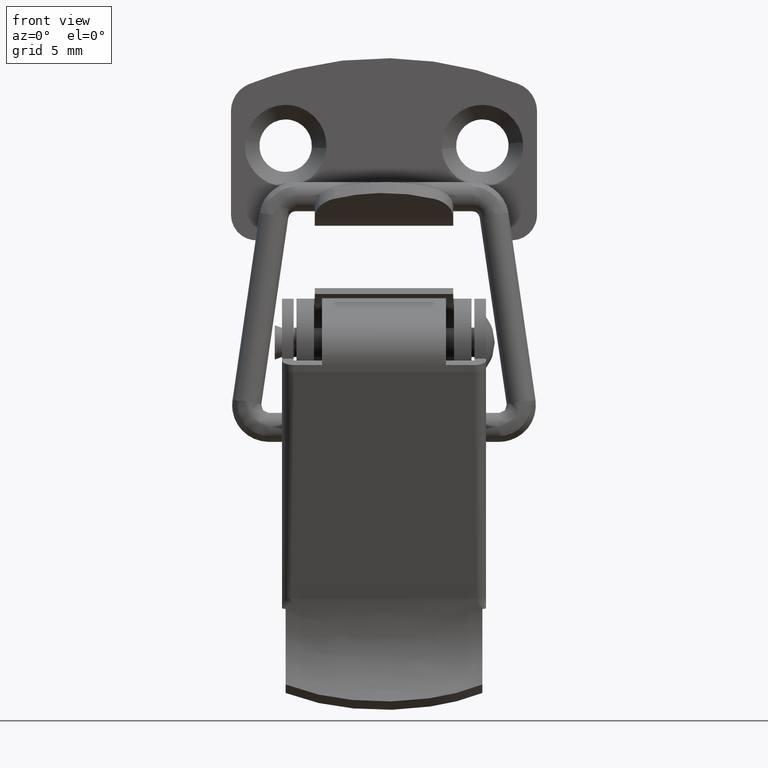
[diagram: clean part render]
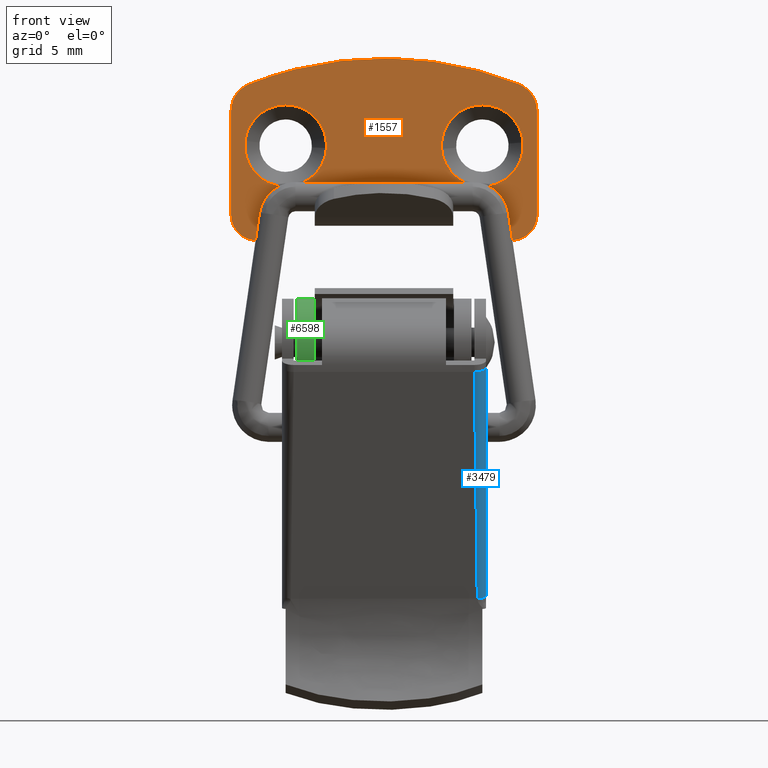
[diagram: same view with three faces highlighted in distinct colors, each labeled with its STEP entity id]
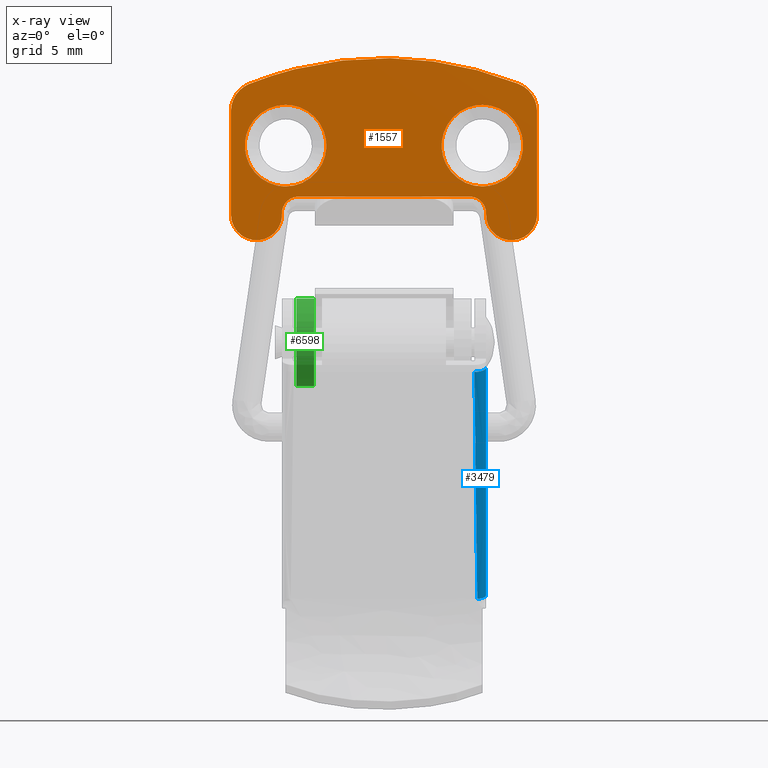
[diagram: x-ray of the same camera — body ghosted, the three highlighted faces saturated]
A machine part, front view with three faces highlighted in distinct colors.
The next image is the same camera in x-ray (body ghosted, the three faces saturated) — at least one of them is partly hidden behind the body in this view.
Their STEP definitions:

[orange] entity #1557 — the highlighted face is a freeform B-spline surface patch.
#62=CARTESIAN_POINT('',(1.500000000000000,-6.750000000000000,6.300000000000085));
#63=VERTEX_POINT('',#62);
#64=CARTESIAN_POINT('',(1.499999999968838,-9.541368534465113,3.719685468278247));
#65=VERTEX_POINT('',#64);
#66=CARTESIAN_POINT('',(1.500000000000000,-6.750000000000000,6.300000000000085));
#67=CARTESIAN_POINT('',(1.500000000000000,-9.338293376200706,6.300000000000085));
#68=CARTESIAN_POINT('',(1.499999999968838,-9.541368534465113,3.719685468278247));
#76=(BOUNDED_CURVE()B_SPLINE_CURVE(2,(#66,#67,#68),.UNSPECIFIED.,.F.,.U.)B_SPLINE_CURVE_WITH_KNOTS((3,3),(0.0,0.236331300603565),.UNSPECIFIED.)CURVE()GEOMETRIC_REPRESENTATION_ITEM()RATIONAL_B_SPLINE_CURVE((1.0,0.723120658639409,0.969723356110874))REPRESENTATION_ITEM(''));
#77=EDGE_CURVE('',#63,#65,#76,.T.);
#79=CARTESIAN_POINT('',(1.499999999968838,-3.958631465534888,3.280314531721922));
#80=VERTEX_POINT('',#79);
#81=CARTESIAN_POINT('',(1.499999999968838,-3.958631465534889,3.280314531721922));
#82=CARTESIAN_POINT('',(1.500000000000000,-3.950000000000000,3.389987700139757));
#83=CARTESIAN_POINT('',(1.500000000000000,-3.950000000000000,3.500000000000085));
#84=CARTESIAN_POINT('',(1.500000000000000,-3.950000000000001,6.300000000000085));
#85=CARTESIAN_POINT('',(1.500000000000000,-6.750000000000000,6.300000000000085));
#93=(BOUNDED_CURVE()B_SPLINE_CURVE(2,(#81,#82,#83,#84,#85),.UNSPECIFIED.,.F.,.U.)B_SPLINE_CURVE_WITH_KNOTS((3,2,3),(0.736331300603565,0.750000000000000,1.0),.UNSPECIFIED.)CURVE()GEOMETRIC_REPRESENTATION_ITEM()RATIONAL_B_SPLINE_CURVE((0.969723356110874,0.983986122547139,1.0,0.707106781186547,1.0))REPRESENTATION_ITEM(''));
#94=EDGE_CURVE('',#80,#63,#93,.T.);
#161=CARTESIAN_POINT('',(1.500000000000000,-6.750000000000000,0.700000000000085));
#162=VERTEX_POINT('',#161);
#163=CARTESIAN_POINT('',(1.499999999968838,-9.541368534465113,3.719685468278247));
#164=CARTESIAN_POINT('',(1.500000000000000,-9.549999999999999,3.610012299860414));
#165=CARTESIAN_POINT('',(1.500000000000000,-9.549999999999999,3.500000000000085));
#166=CARTESIAN_POINT('',(1.500000000000000,-9.549999999999999,0.700000000000085));
#167=CARTESIAN_POINT('',(1.500000000000000,-6.750000000000000,0.700000000000085));
#175=(BOUNDED_CURVE()B_SPLINE_CURVE(2,(#163,#164,#165,#166,#167),.UNSPECIFIED.,.F.,.U.)B_SPLINE_CURVE_WITH_KNOTS((3,2,3),(0.236331300603565,0.250000000000000,0.500000000000000),.UNSPECIFIED.)CURVE()GEOMETRIC_REPRESENTATION_ITEM()RATIONAL_B_SPLINE_CURVE((0.969723356110874,0.983986122547139,1.0,0.707106781186547,1.0))REPRESENTATION_ITEM(''));
#176=EDGE_CURVE('',#65,#162,#175,.T.);
#210=CARTESIAN_POINT('',(1.500000000000000,-6.750000000000000,0.700000000000085));
#211=CARTESIAN_POINT('',(1.500000000000000,-4.161706623799294,0.700000000000085));
#212=CARTESIAN_POINT('',(1.499999999968838,-3.958631465534888,3.280314531721922));
#220=(BOUNDED_CURVE()B_SPLINE_CURVE(2,(#210,#211,#212),.UNSPECIFIED.,.F.,.U.)B_SPLINE_CURVE_WITH_KNOTS((3,3),(0.500000000000000,0.736331300603565),.UNSPECIFIED.)CURVE()GEOMETRIC_REPRESENTATION_ITEM()RATIONAL_B_SPLINE_CURVE((1.0,0.723120658639409,0.969723356110873))REPRESENTATION_ITEM(''));
#221=EDGE_CURVE('',#162,#80,#220,.T.);
#248=CARTESIAN_POINT('',(1.499999999999677,9.530426673818283,3.830495857041588));
#249=VERTEX_POINT('',#248);
#250=CARTESIAN_POINT('',(1.500000000000000,6.750000000000000,0.700000000000085));
#251=VERTEX_POINT('',#250);
#252=CARTESIAN_POINT('',(1.499999999999677,9.530426673818283,3.830495857041588));
#253=CARTESIAN_POINT('',(1.500000000000000,9.549999999999999,3.665827535028001));
#254=CARTESIAN_POINT('',(1.500000000000000,9.549999999999999,3.500000000000085));
#255=CARTESIAN_POINT('',(1.500000000000000,9.549999999999999,0.700000000000085));
#256=CARTESIAN_POINT('',(1.500000000000000,6.750000000000000,0.700000000000085));
#264=(BOUNDED_CURVE()B_SPLINE_CURVE(2,(#252,#253,#254,#255,#256),.UNSPECIFIED.,.F.,.U.)B_SPLINE_CURVE_WITH_KNOTS((3,2,3),(0.229562473515335,0.250000000000000,0.500000000000000),.UNSPECIFIED.)CURVE()GEOMETRIC_REPRESENTATION_ITEM()RATIONAL_B_SPLINE_CURVE((0.956026754187280,0.976055948333285,1.0,0.707106781186547,1.0))REPRESENTATION_ITEM(''));
#265=EDGE_CURVE('',#249,#251,#264,.T.);
#267=CARTESIAN_POINT('',(1.499999999986203,3.955222564411398,3.329064089197074));
#268=VERTEX_POINT('',#267);
#269=CARTESIAN_POINT('',(1.500000000000000,6.750000000000000,0.700000000000085));
#270=CARTESIAN_POINT('',(1.500000000000000,4.116023012861545,0.700000000000085));
#271=CARTESIAN_POINT('',(1.499999999986203,3.955222564411398,3.329064089197073));
#279=(BOUNDED_CURVE()B_SPLINE_CURVE(2,(#269,#270,#271),.UNSPECIFIED.,.F.,.U.)B_SPLINE_CURVE_WITH_KNOTS((3,3),(0.500000000000000,0.739332962229055),.UNSPECIFIED.)CURVE()GEOMETRIC_REPRESENTATION_ITEM()RATIONAL_B_SPLINE_CURVE((1.0,0.719603993298294,0.976072041645526))REPRESENTATION_ITEM(''));
#280=EDGE_CURVE('',#251,#268,#279,.T.);
#347=CARTESIAN_POINT('',(1.500000000000000,6.750000000000000,6.300000000000085));
#348=VERTEX_POINT('',#347);
#349=CARTESIAN_POINT('',(1.500000000000000,6.750000000000000,6.300000000000085));
#350=CARTESIAN_POINT('',(1.500000000000000,9.236888672659250,6.300000000000086));
#351=CARTESIAN_POINT('',(1.499999999999677,9.530426673818283,3.830495857041588));
#359=(BOUNDED_CURVE()B_SPLINE_CURVE(2,(#349,#350,#351),.UNSPECIFIED.,.F.,.U.)B_SPLINE_CURVE_WITH_KNOTS((3,3),(0.0,0.229562473515335),.UNSPECIFIED.)CURVE()GEOMETRIC_REPRESENTATION_ITEM()RATIONAL_B_SPLINE_CURVE((1.0,0.731050832853262,0.956026754187280))REPRESENTATION_ITEM(''));
#360=EDGE_CURVE('',#348,#249,#359,.T.);
#394=CARTESIAN_POINT('',(1.499999999986203,3.955222564411398,3.329064089197074));
#395=CARTESIAN_POINT('',(1.500000000000000,3.950000000000000,3.414452262659173));
#396=CARTESIAN_POINT('',(1.500000000000000,3.950000000000000,3.500000000000085));
#397=CARTESIAN_POINT('',(1.500000000000000,3.950000000000001,6.300000000000085));
#398=CARTESIAN_POINT('',(1.500000000000000,6.750000000000000,6.300000000000085));
#406=(BOUNDED_CURVE()B_SPLINE_CURVE(2,(#394,#395,#396,#397,#398),.UNSPECIFIED.,.F.,.U.)B_SPLINE_CURVE_WITH_KNOTS((3,2,3),(0.739332962229056,0.750000000000000,1.0),.UNSPECIFIED.)CURVE()GEOMETRIC_REPRESENTATION_ITEM()RATIONAL_B_SPLINE_CURVE((0.976072041645529,0.987502787888254,1.0,0.707106781186547,1.0))REPRESENTATION_ITEM(''));
#407=EDGE_CURVE('',#268,#348,#406,.T.);
#672=CARTESIAN_POINT('',(1.500000000000000,5.732986000556160,-0.000000482247714));
#673=VERTEX_POINT('',#672);
#687=CARTESIAN_POINT('',(1.500000000000000,5.750000000000000,0.000144266316872));
#688=VERTEX_POINT('',#687);
#689=CARTESIAN_POINT('',(1.500000000000000,5.750000000000000,0.000144266316872));
#690=CARTESIAN_POINT('',(1.500000000000055,5.741492384545522,0.000144266316872));
#691=CARTESIAN_POINT('',(1.500000000000000,5.732986000556160,-0.000000482247714));
#699=(BOUNDED_CURVE()B_SPLINE_CURVE(2,(#689,#690,#691),.UNSPECIFIED.,.F.,.U.)CURVE()GEOMETRIC_REPRESENTATION_ITEM()QUASI_UNIFORM_CURVE()RATIONAL_B_SPLINE_CURVE((1.0,0.999963812204069,1.0))REPRESENTATION_ITEM(''));
#700=EDGE_CURVE('',#688,#673,#699,.T.);
#771=CARTESIAN_POINT('',(1.500000000000000,-5.750000000000000,0.000144266316872));
#772=VERTEX_POINT('',#771);
#778=CARTESIAN_POINT('',(1.500000000000000,-5.732986000556050,-0.000000482247714));
#779=VERTEX_POINT('',#778);
#780=CARTESIAN_POINT('',(1.500000000000000,-5.732986000556050,-0.000000482247714));
#781=CARTESIAN_POINT('',(1.500000000000000,-5.741492384545469,0.000144266316872));
#782=CARTESIAN_POINT('',(1.500000000000000,-5.750000000000000,0.000144266316872));
#790=(BOUNDED_CURVE()B_SPLINE_CURVE(2,(#780,#781,#782),.UNSPECIFIED.,.F.,.U.)CURVE()GEOMETRIC_REPRESENTATION_ITEM()QUASI_UNIFORM_CURVE()RATIONAL_B_SPLINE_CURVE((1.0,0.999963812204068,1.0))REPRESENTATION_ITEM(''));
#791=EDGE_CURVE('',#779,#772,#790,.T.);
#949=CARTESIAN_POINT('',(1.500000000000000,-5.732986000556050,-0.000000482247714));
#950=CARTESIAN_POINT('',(1.500000000000000,5.732986000556160,-0.000000482247714));
#951=QUASI_UNIFORM_CURVE('',1,(#949,#950),.UNSPECIFIED.,.F.,.U.);
#952=EDGE_CURVE('',#779,#673,#951,.T.);
#1031=CARTESIAN_POINT('',(1.500000000000055,-7.001603312897640,-1.174593696238500));
#1032=VERTEX_POINT('',#1031);
#1033=CARTESIAN_POINT('',(1.500000000000055,-5.883426500913421,0.000144266316872));
#1034=VERTEX_POINT('',#1033);
#1035=CARTESIAN_POINT('',(1.500000000000055,-7.001603312897638,-1.174593696238500));
#1036=CARTESIAN_POINT('',(1.500000000000055,-7.022183105947764,-0.696343578976273));
#1037=CARTESIAN_POINT('',(1.500000000000055,-6.692146373183101,-0.349612476290999));
#1038=CARTESIAN_POINT('',(1.500000000000055,-6.362109640418438,-0.002881373605724));
#1039=CARTESIAN_POINT('',(1.500000000000055,-5.883426500913421,0.000144266316874));
#1047=(BOUNDED_CURVE()B_SPLINE_CURVE(2,(#1035,#1036,#1037,#1038,#1039),.UNSPECIFIED.,.F.,.U.)B_SPLINE_CURVE_WITH_KNOTS((3,2,3),(0.0,0.500000000000000,1.0),.UNSPECIFIED.)CURVE()GEOMETRIC_REPRESENTATION_ITEM()RATIONAL_B_SPLINE_CURVE((1.0,0.920331116304167,1.0,0.920331116304167,1.0))REPRESENTATION_ITEM(''));
#1048=EDGE_CURVE('',#1032,#1034,#1047,.T.);
#1087=CARTESIAN_POINT('',(1.500000000000000,-5.750000000000000,0.000144266316872));
#1088=CARTESIAN_POINT('',(1.500000000000055,-5.883426500913421,0.000144266316872));
#1089=QUASI_UNIFORM_CURVE('',1,(#1087,#1088),.UNSPECIFIED.,.F.,.U.);
#1090=EDGE_CURVE('',#772,#1034,#1089,.T.);
#1116=CARTESIAN_POINT('',(1.500000000000055,5.876382402313560,0.000144266316872));
#1117=VERTEX_POINT('',#1116);
#1118=CARTESIAN_POINT('',(1.500000000000055,7.001653345640011,-1.174592935301336));
#1119=VERTEX_POINT('',#1118);
#1120=CARTESIAN_POINT('',(1.500000000000055,5.876382402313560,0.000144266316872));
#1121=CARTESIAN_POINT('',(1.500000000000055,6.357167964814905,0.000144266316872));
#1122=CARTESIAN_POINT('',(1.500000000000055,6.689746126113304,-0.347053838138076));
#1123=CARTESIAN_POINT('',(1.500000000000055,7.022324287411705,-0.694251942593025));
#1124=CARTESIAN_POINT('',(1.500000000000055,7.001653345640011,-1.174592935301336));
#1132=(BOUNDED_CURVE()B_SPLINE_CURVE(2,(#1120,#1121,#1122,#1123,#1124),.UNSPECIFIED.,.F.,.U.)B_SPLINE_CURVE_WITH_KNOTS((3,2,3),(0.0,0.500000000000000,1.0),.UNSPECIFIED.)CURVE()GEOMETRIC_REPRESENTATION_ITEM()RATIONAL_B_SPLINE_CURVE((1.0,0.919711660555168,1.0,0.919711660555168,1.0))REPRESENTATION_ITEM(''));
#1133=EDGE_CURVE('',#1117,#1119,#1132,.T.);
#1185=CARTESIAN_POINT('',(1.500000000000055,10.500000000000000,-1.250000000000000));
#1186=VERTEX_POINT('',#1185);
#1187=CARTESIAN_POINT('',(1.500000000000055,10.500000000000000,-1.250000000000000));
#1188=CARTESIAN_POINT('',(1.500000000000055,10.499901309179464,-2.277109838129718));
#1189=CARTESIAN_POINT('',(1.500000000000055,9.603095458525502,-2.777803252861288));
#1190=CARTESIAN_POINT('',(1.500000000000055,8.706289607871540,-3.278496667592857));
#1191=CARTESIAN_POINT('',(1.500000000000055,7.831891645948256,-2.739624852123592));
#1192=CARTESIAN_POINT('',(1.500000000000055,6.957493684024970,-2.200753036654328));
#1193=CARTESIAN_POINT('',(1.500000000000055,7.001653345640014,-1.174592935301336));
#1201=(BOUNDED_CURVE()B_SPLINE_CURVE(2,(#1187,#1188,#1189,#1190,#1191,#1192,#1193),.UNSPECIFIED.,.F.,.U.)B_SPLINE_CURVE_WITH_KNOTS((3,2,2,3),(0.0,0.333333333333333,0.666666666666667,1.0),.UNSPECIFIED.)CURVE()GEOMETRIC_REPRESENTATION_ITEM()RATIONAL_B_SPLINE_CURVE((1.0,0.862427346943310,1.0,0.862427346943310,1.0,0.862427346943310,1.0))REPRESENTATION_ITEM(''));
#1202=EDGE_CURVE('',#1186,#1119,#1201,.T.);
#1237=CARTESIAN_POINT('',(1.500000000000055,10.500000000000000,5.871999999999900));
#1238=VERTEX_POINT('',#1237);
#1239=CARTESIAN_POINT('',(1.500000000000055,10.500000000000000,5.871999999999900));
#1240=CARTESIAN_POINT('',(1.500000000000055,10.500000000000000,-1.250000000000000));
#1241=QUASI_UNIFORM_CURVE('',1,(#1239,#1240),.UNSPECIFIED.,.F.,.U.);
#1242=EDGE_CURVE('',#1238,#1186,#1241,.T.);
#1274=CARTESIAN_POINT('',(1.500000000000055,9.239204572591099,7.730235238507801));
#1275=VERTEX_POINT('',#1274);
#1276=CARTESIAN_POINT('',(1.500000000000055,9.239204572591099,7.730235238507801));
#1277=CARTESIAN_POINT('',(1.500000000000056,10.499928188231829,7.228787915495127));
#1278=CARTESIAN_POINT('',(1.500000000000055,10.500000000000000,5.871999999999900));
#1286=(BOUNDED_CURVE()B_SPLINE_CURVE(2,(#1276,#1277,#1278),.UNSPECIFIED.,.F.,.U.)CURVE()GEOMETRIC_REPRESENTATION_ITEM()QUASI_UNIFORM_CURVE()RATIONAL_B_SPLINE_CURVE((1.0,0.827536506809215,1.0))REPRESENTATION_ITEM(''));
#1287=EDGE_CURVE('',#1275,#1238,#1286,.T.);
#1327=CARTESIAN_POINT('',(1.500000000000055,-9.239164029554690,7.730251363796930));
#1328=VERTEX_POINT('',#1327);
#1329=CARTESIAN_POINT('',(1.500000000000055,-9.239164029554690,7.730251363796930));
#1330=CARTESIAN_POINT('',(1.500000000000055,0.000023478391788,11.405079250057911));
#1331=CARTESIAN_POINT('',(1.500000000000055,9.239204572591099,7.730235238507801));
#1339=(BOUNDED_CURVE()B_SPLINE_CURVE(2,(#1329,#1330,#1331),.UNSPECIFIED.,.F.,.U.)CURVE()GEOMETRIC_REPRESENTATION_ITEM()QUASI_UNIFORM_CURVE()RATIONAL_B_SPLINE_CURVE((1.0,0.929197582733271,1.0))REPRESENTATION_ITEM(''));
#1340=EDGE_CURVE('',#1328,#1275,#1339,.T.);
#1380=CARTESIAN_POINT('',(1.500000000000055,-10.500000000000000,5.871999999997500));
#1381=VERTEX_POINT('',#1380);
#1382=CARTESIAN_POINT('',(1.500000000000055,-10.500000000000000,5.871999999997499));
#1383=CARTESIAN_POINT('',(1.500000000000054,-10.499900954331627,7.228801295285740));
#1384=CARTESIAN_POINT('',(1.500000000000055,-9.239164029554690,7.730251363796931));
#1392=(BOUNDED_CURVE()B_SPLINE_CURVE(2,(#1382,#1383,#1384),.UNSPECIFIED.,.F.,.U.)CURVE()GEOMETRIC_REPRESENTATION_ITEM()QUASI_UNIFORM_CURVE()RATIONAL_B_SPLINE_CURVE((1.0,0.827541651084785,1.0))REPRESENTATION_ITEM(''));
#1393=EDGE_CURVE('',#1381,#1328,#1392,.T.);
#1424=CARTESIAN_POINT('',(1.500000000000055,-10.500000000000000,-1.250000000000000));
#1425=VERTEX_POINT('',#1424);
#1426=CARTESIAN_POINT('',(1.500000000000055,-10.500000000000000,-1.250000000000000));
#1427=CARTESIAN_POINT('',(1.500000000000055,-10.500000000000000,5.871999999997500));
#1428=QUASI_UNIFORM_CURVE('',1,(#1426,#1427),.UNSPECIFIED.,.F.,.U.);
#1429=EDGE_CURVE('',#1425,#1381,#1428,.T.);
#1465=CARTESIAN_POINT('',(1.500000000000055,-7.001603312897633,-1.174593696238499));
#1466=CARTESIAN_POINT('',(1.500000000000055,-6.957445592929804,-2.200767025640342));
#1467=CARTESIAN_POINT('',(1.500000000000055,-7.831855362170336,-2.739644712750451));
#1468=CARTESIAN_POINT('',(1.500000000000055,-8.706265131410868,-3.278522399860560));
#1469=CARTESIAN_POINT('',(1.500000000000055,-9.603082505151768,-2.777822685096415));
#1470=CARTESIAN_POINT('',(1.500000000000055,-10.499899878892666,-2.277122970332270));
#1471=CARTESIAN_POINT('',(1.500000000000055,-10.500000000000000,-1.250000000000000));
#1479=(BOUNDED_CURVE()B_SPLINE_CURVE(2,(#1465,#1466,#1467,#1468,#1469,#1470,#1471),.UNSPECIFIED.,.F.,.U.)B_SPLINE_CURVE_WITH_KNOTS((3,2,2,3),(0.0,0.333333333333333,0.666666666666667,1.0),.UNSPECIFIED.)CURVE()GEOMETRIC_REPRESENTATION_ITEM()RATIONAL_B_SPLINE_CURVE((1.0,0.862427670358670,1.0,0.862427670358670,1.0,0.862427670358670,1.0))REPRESENTATION_ITEM(''));
#1480=EDGE_CURVE('',#1032,#1425,#1479,.T.);
#1515=CARTESIAN_POINT('',(1.500000000000055,5.876382402313560,0.000144266316872));
#1516=CARTESIAN_POINT('',(1.500000000000000,5.750000000000000,0.000144266316872));
#1517=QUASI_UNIFORM_CURVE('',1,(#1515,#1516),.UNSPECIFIED.,.F.,.U.);
#1518=EDGE_CURVE('',#1117,#688,#1517,.T.);
#1524=CARTESIAN_POINT('',(1.500000000000000,11.548949959297930,10.124584849972290));
#1525=CARTESIAN_POINT('',(1.500000000000000,-11.548950522561819,10.124584849972290));
#1526=CARTESIAN_POINT('',(1.500000000000000,11.548949959297930,-3.623788598328685));
#1527=CARTESIAN_POINT('',(1.500000000000000,-11.548950522561819,-3.623788598328685));
#1528=B_SPLINE_SURFACE_WITH_KNOTS('',1,1,((#1524,#1526),(#1525,#1527)),.UNSPECIFIED.,.F.,.F.,.U.,(2,2),(2,2),(0.0,23.097900481859750),(0.0,13.748373448300971),.UNSPECIFIED.);
#1529=ORIENTED_EDGE('',*,*,#1518,.T.);
#1530=ORIENTED_EDGE('',*,*,#700,.T.);
#1531=ORIENTED_EDGE('',*,*,#952,.F.);
#1532=ORIENTED_EDGE('',*,*,#791,.T.);
#1533=ORIENTED_EDGE('',*,*,#1090,.T.);
#1534=ORIENTED_EDGE('',*,*,#1048,.F.);
#1535=ORIENTED_EDGE('',*,*,#1480,.T.);
#1536=ORIENTED_EDGE('',*,*,#1429,.T.);
#1537=ORIENTED_EDGE('',*,*,#1393,.T.);
#1538=ORIENTED_EDGE('',*,*,#1340,.T.);
#1539=ORIENTED_EDGE('',*,*,#1287,.T.);
#1540=ORIENTED_EDGE('',*,*,#1242,.T.);
#1541=ORIENTED_EDGE('',*,*,#1202,.T.);
#1542=ORIENTED_EDGE('',*,*,#1133,.F.);
#1543=EDGE_LOOP('',(#1529,#1530,#1531,#1532,#1533,#1534,#1535,#1536,#1537,#1538,#1539,#1540,#1541,#1542));
#1544=FACE_OUTER_BOUND('',#1543,.T.);
#1545=ORIENTED_EDGE('',*,*,#280,.F.);
#1546=ORIENTED_EDGE('',*,*,#265,.F.);
#1547=ORIENTED_EDGE('',*,*,#360,.F.);
#1548=ORIENTED_EDGE('',*,*,#407,.F.);
#1549=EDGE_LOOP('',(#1545,#1546,#1547,#1548));
#1550=FACE_BOUND('',#1549,.T.);
#1551=ORIENTED_EDGE('',*,*,#221,.T.);
#1552=ORIENTED_EDGE('',*,*,#94,.T.);
#1553=ORIENTED_EDGE('',*,*,#77,.T.);
#1554=ORIENTED_EDGE('',*,*,#176,.T.);
#1555=EDGE_LOOP('',(#1551,#1552,#1553,#1554));
#1556=FACE_BOUND('',#1555,.T.);
#1557=ADVANCED_FACE('',(#1544,#1550,#1556),#1528,.F.);

[blue] entity #3479 — the highlighted face is a freeform B-spline surface patch.
#3388=CARTESIAN_POINT('',(0.589018549918468,-7.0,-27.360259379532351));
#3389=VERTEX_POINT('',#3388);
#3396=CARTESIAN_POINT('',(0.032199489179619,-6.400000000000000,-27.583760013978701));
#3397=VERTEX_POINT('',#3396);
#3398=CARTESIAN_POINT('',(0.589018549918466,-6.999999999999997,-27.360259379532341));
#3399=CARTESIAN_POINT('',(0.032199489179620,-7.000000000000006,-27.583760013978633));
#3400=CARTESIAN_POINT('',(0.032199489179620,-6.400000000000000,-27.583760013978690));
#3408=(BOUNDED_CURVE()B_SPLINE_CURVE(2,(#3398,#3399,#3400),.UNSPECIFIED.,.F.,.U.)CURVE()GEOMETRIC_REPRESENTATION_ITEM()QUASI_UNIFORM_CURVE()RATIONAL_B_SPLINE_CURVE((1.0,0.707106781186548,1.0))REPRESENTATION_ITEM(''));
#3409=EDGE_CURVE('',#3389,#3397,#3408,.T.);
#3425=CARTESIAN_POINT('',(0.032199489179621,-6.400000000000000,-27.583760013978701));
#3426=CARTESIAN_POINT('',(0.032199489179621,-7.000000000000006,-27.583760013978640));
#3427=CARTESIAN_POINT('',(0.589018549918468,-7.0,-27.360259379532351));
#3428=CARTESIAN_POINT('',(-2.049030777737210,-6.400000000000000,-22.398679956927651));
#3429=CARTESIAN_POINT('',(-2.049030777737210,-7.000000000000006,-22.398679956927637));
#3430=CARTESIAN_POINT('',(-1.492211716998366,-7.0,-22.175179322481299));
#3431=CARTESIAN_POINT('',(-4.130261044654046,-6.200000000000000,-17.213599899876549));
#3432=CARTESIAN_POINT('',(-4.130261044654044,-7.000000000000006,-17.213599899876559));
#3433=CARTESIAN_POINT('',(-3.387835630335585,-7.0,-16.915599053948149));
#3434=CARTESIAN_POINT('',(-6.211491311570880,-6.200000000000000,-12.028519842825499));
#3435=CARTESIAN_POINT('',(-6.211491311570875,-7.000000000000006,-12.028519842825483));
#3436=CARTESIAN_POINT('',(-5.469065897252420,-7.0,-11.730518996897059));
#3444=(BOUNDED_SURFACE()B_SPLINE_SURFACE(2,3,((#3425,#3428,#3431,#3434),(#3426,#3429,#3432,#3435),(#3427,#3430,#3433,#3436)),.UNSPECIFIED.,.F.,.F.,.U.)B_SPLINE_SURFACE_WITH_KNOTS((3,3),(4,4),(0.0,1.0),(0.0,16.763659585804842),.UNSPECIFIED.)GEOMETRIC_REPRESENTATION_ITEM()RATIONAL_B_SPLINE_SURFACE(((1.0,1.0,1.0,1.0),(0.707106781186548,0.707106781186548,0.707106781186548,0.707106781186548),(1.0,1.0,1.0,1.0)))REPRESENTATION_ITEM('')SURFACE());
#3445=CARTESIAN_POINT('',(-5.469065897252451,-7.0,-11.730518996897080));
#3446=VERTEX_POINT('',#3445);
#3447=CARTESIAN_POINT('',(-6.211491311570910,-6.200000000000000,-12.028519842825499));
#3448=VERTEX_POINT('',#3447);
#3449=CARTESIAN_POINT('',(-5.469065897252451,-7.0,-11.730518996897080));
#3450=CARTESIAN_POINT('',(-6.211491311570921,-7.000000000000004,-12.028519842825519));
#3451=CARTESIAN_POINT('',(-6.211491311570910,-6.200000000000000,-12.028519842825521));
#3459=(BOUNDED_CURVE()B_SPLINE_CURVE(2,(#3449,#3450,#3451),.UNSPECIFIED.,.F.,.U.)CURVE()GEOMETRIC_REPRESENTATION_ITEM()QUASI_UNIFORM_CURVE()RATIONAL_B_SPLINE_CURVE((1.0,0.707106781186541,1.0))REPRESENTATION_ITEM(''));
#3460=EDGE_CURVE('',#3446,#3448,#3459,.T.);
#3461=ORIENTED_EDGE('',*,*,#3460,.T.);
#3462=CARTESIAN_POINT('',(0.032199489179621,-6.400000000000000,-27.583760013978701));
#3463=CARTESIAN_POINT('',(-2.049030777737210,-6.400000000000000,-22.398679956927651));
#3464=CARTESIAN_POINT('',(-4.130261044654046,-6.200000000000000,-17.213599899876549));
#3465=CARTESIAN_POINT('',(-6.211491311570880,-6.200000000000000,-12.028519842825499));
#3466=QUASI_UNIFORM_CURVE('',3,(#3462,#3463,#3464,#3465),.UNSPECIFIED.,.F.,.U.);
#3467=EDGE_CURVE('',#3397,#3448,#3466,.T.);
#3468=ORIENTED_EDGE('',*,*,#3467,.F.);
#3469=ORIENTED_EDGE('',*,*,#3409,.F.);
#3470=CARTESIAN_POINT('',(-5.469065897252420,-7.0,-11.730518996897059));
#3471=CARTESIAN_POINT('',(-3.387835630335585,-7.0,-16.915599053948149));
#3472=CARTESIAN_POINT('',(-1.492211716998366,-7.0,-22.175179322481299));
#3473=CARTESIAN_POINT('',(0.589018549918468,-7.0,-27.360259379532351));
#3474=QUASI_UNIFORM_CURVE('',3,(#3470,#3471,#3472,#3473),.UNSPECIFIED.,.F.,.U.);
#3475=EDGE_CURVE('',#3446,#3389,#3474,.T.);
#3476=ORIENTED_EDGE('',*,*,#3475,.F.);
#3477=EDGE_LOOP('',(#3461,#3468,#3469,#3476));
#3478=FACE_OUTER_BOUND('',#3477,.T.);
#3479=ADVANCED_FACE('',(#3478),#3444,.T.);

[green] entity #6598 — the highlighted face is a freeform B-spline surface patch.
#6384=CARTESIAN_POINT('',(-2.500008415104275,4.800000000000000,-6.999999517752190));
#6385=VERTEX_POINT('',#6384);
#6391=CARTESIAN_POINT('',(-2.500008415104275,4.800000000000000,-12.999999517752199));
#6392=VERTEX_POINT('',#6391);
#6393=CARTESIAN_POINT('',(-2.500008415104275,4.800000000000000,-6.999999517752189));
#6394=CARTESIAN_POINT('',(-5.500008415104275,4.800000000000000,-6.999999517752191));
#6395=CARTESIAN_POINT('',(-5.500008415104275,4.800000000000000,-9.999999517752189));
#6396=CARTESIAN_POINT('',(-5.500008415104275,4.800000000000000,-12.999999517752189));
#6397=CARTESIAN_POINT('',(-2.500008415104275,4.800000000000000,-12.999999517752190));
#6405=(BOUNDED_CURVE()B_SPLINE_CURVE(2,(#6393,#6394,#6395,#6396,#6397),.UNSPECIFIED.,.F.,.U.)B_SPLINE_CURVE_WITH_KNOTS((3,2,3),(0.0,0.500000000000000,1.0),.UNSPECIFIED.)CURVE()GEOMETRIC_REPRESENTATION_ITEM()RATIONAL_B_SPLINE_CURVE((1.0,0.707106781186548,1.0,0.707106781186548,1.0))REPRESENTATION_ITEM(''));
#6406=EDGE_CURVE('',#6385,#6392,#6405,.T.);
#6471=CARTESIAN_POINT('',(-2.500008415104275,6.0,-6.999999517752190));
#6472=VERTEX_POINT('',#6471);
#6479=CARTESIAN_POINT('',(-2.500008415104275,6.0,-12.999999517752199));
#6480=VERTEX_POINT('',#6479);
#6486=CARTESIAN_POINT('',(-2.500008415104275,6.0,-6.999999517752189));
#6487=CARTESIAN_POINT('',(-5.500008415104275,6.0,-6.999999517752191));
#6488=CARTESIAN_POINT('',(-5.500008415104275,6.0,-9.999999517752189));
#6489=CARTESIAN_POINT('',(-5.500008415104275,6.0,-12.999999517752189));
#6490=CARTESIAN_POINT('',(-2.500008415104275,6.0,-12.999999517752190));
#6498=(BOUNDED_CURVE()B_SPLINE_CURVE(2,(#6486,#6487,#6488,#6489,#6490),.UNSPECIFIED.,.F.,.U.)B_SPLINE_CURVE_WITH_KNOTS((3,2,3),(0.0,0.500000000000000,1.0),.UNSPECIFIED.)CURVE()GEOMETRIC_REPRESENTATION_ITEM()RATIONAL_B_SPLINE_CURVE((1.0,0.707106781186548,1.0,0.707106781186548,1.0))REPRESENTATION_ITEM(''));
#6499=EDGE_CURVE('',#6472,#6480,#6498,.T.);
#6566=CARTESIAN_POINT('',(-2.473828808609156,6.030000000000001,-12.999885286944700));
#6567=CARTESIAN_POINT('',(-2.473828808609156,4.769249999999999,-12.999885286944700));
#6568=CARTESIAN_POINT('',(-5.580301460516943,6.030000000000000,-13.026995063073507));
#6569=CARTESIAN_POINT('',(-5.580301460516943,4.769249999999999,-13.026995063073507));
#6570=CARTESIAN_POINT('',(-5.498980390030948,6.030000000000001,-9.921468672828567));
#6571=CARTESIAN_POINT('',(-5.498980390030948,4.769249999999999,-9.921468672828567));
#6572=CARTESIAN_POINT('',(-5.417659319544953,6.030000000000000,-6.815942282583627));
#6573=CARTESIAN_POINT('',(-5.417659319544953,4.769249999999999,-6.815942282583627));
#6574=CARTESIAN_POINT('',(-2.316862796499705,6.030000000000001,-7.005595122486585));
#6575=CARTESIAN_POINT('',(-2.316862796499705,4.769249999999999,-7.005595122486585));
#6583=(BOUNDED_SURFACE()B_SPLINE_SURFACE(1,2,((#6566,#6568,#6570,#6572,#6574),(#6567,#6569,#6571,#6573,#6575)),.UNSPECIFIED.,.F.,.F.,.U.)B_SPLINE_SURFACE_WITH_KNOTS((2,2),(3,2,3),(0.0,1.0),(0.0,5.093697794515258,10.187395589030521),.UNSPECIFIED.)GEOMETRIC_REPRESENTATION_ITEM()RATIONAL_B_SPLINE_SURFACE(((1.0,0.694658370458997,1.0,0.694658370458997,1.0),(1.0,0.694658370458997,1.0,0.694658370458997,1.0)))REPRESENTATION_ITEM('')SURFACE());
#6584=CARTESIAN_POINT('',(-2.500008415104275,6.0,-12.999999517752199));
#6585=CARTESIAN_POINT('',(-2.500008415104275,4.800000000000000,-12.999999517752199));
#6586=QUASI_UNIFORM_CURVE('',1,(#6584,#6585),.UNSPECIFIED.,.F.,.U.);
#6587=EDGE_CURVE('',#6480,#6392,#6586,.T.);
#6588=ORIENTED_EDGE('',*,*,#6587,.T.);
#6589=ORIENTED_EDGE('',*,*,#6406,.F.);
#6590=CARTESIAN_POINT('',(-2.500008415104275,6.0,-6.999999517752190));
#6591=CARTESIAN_POINT('',(-2.500008415104275,4.800000000000000,-6.999999517752190));
#6592=QUASI_UNIFORM_CURVE('',1,(#6590,#6591),.UNSPECIFIED.,.F.,.U.);
#6593=EDGE_CURVE('',#6472,#6385,#6592,.T.);
#6594=ORIENTED_EDGE('',*,*,#6593,.F.);
#6595=ORIENTED_EDGE('',*,*,#6499,.T.);
#6596=EDGE_LOOP('',(#6588,#6589,#6594,#6595));
#6597=FACE_OUTER_BOUND('',#6596,.T.);
#6598=ADVANCED_FACE('',(#6597),#6583,.T.);